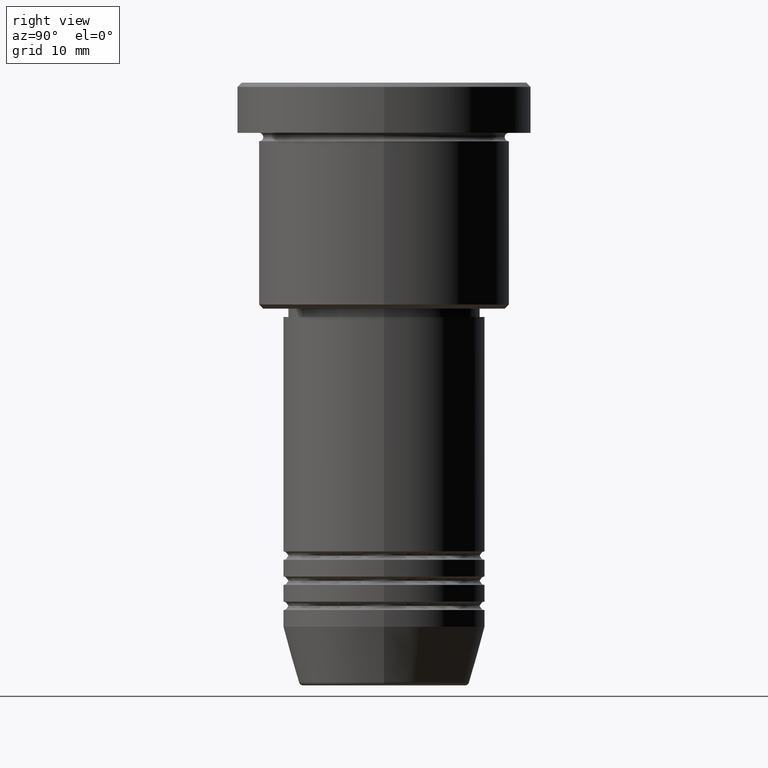
[diagram: clean part render]
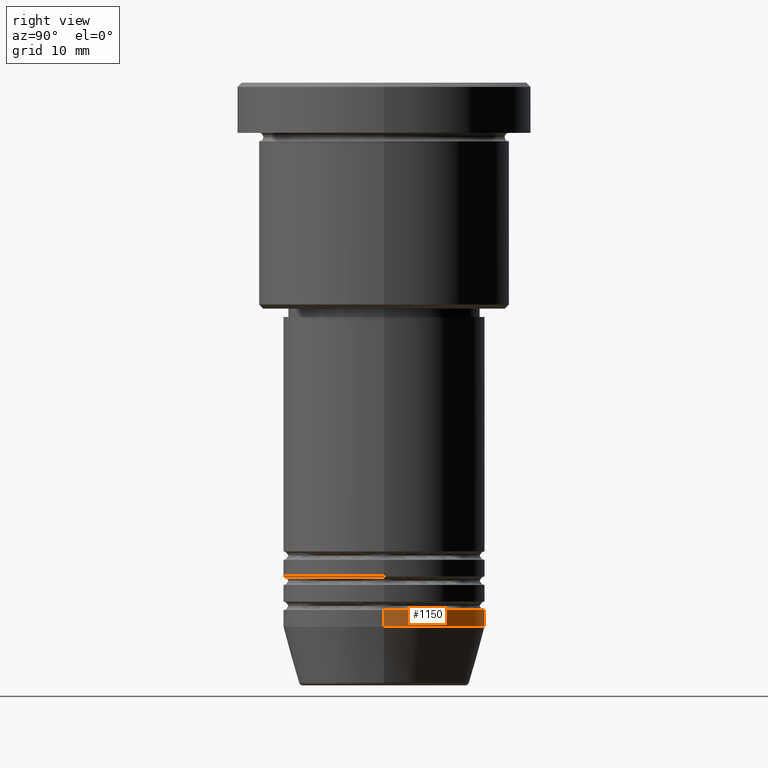
[diagram: same view with one face highlighted and labeled with its STEP entity id]
A machine part, right view. The second image highlights one B-rep face of the part: STEP entity #1150.
In plain terms, the highlighted cylindrical surface (partial cylindrical patch) has radius 12 mm, axis along (-0, -0, 1).
Its self-contained STEP definition (entity closure, byte-faithful):
#34 = DIRECTION ( 'NONE',  ( -0.000000000000000000, -0.000000000000000000, 1.000000000000000000 ) ) ;
#48 = CARTESIAN_POINT ( 'NONE',  ( 12.00000000000000000, 0.000000000000000000, -63.00000000000000000 ) ) ;
#82 = DIRECTION ( 'NONE',  ( -0.000000000000000000, -0.000000000000000000, 1.000000000000000000 ) ) ;
#101 = VERTEX_POINT ( 'NONE', #611 ) ;
#106 = CIRCLE ( 'NONE', #548, 12.00000000000000000 ) ;
#107 = VERTEX_POINT ( 'NONE', #237 ) ;
#113 = CARTESIAN_POINT ( 'NONE',  ( 0.000000000000000000, 0.000000000000000000, 0.000000000000000000 ) ) ;
#213 = ORIENTED_EDGE ( 'NONE', *, *, #599, .T. ) ;
#216 = CARTESIAN_POINT ( 'NONE',  ( -12.00000000000000000, 1.469576158976823947E-15, -65.00000000000000000 ) ) ;
#218 = DIRECTION ( 'NONE',  ( -0.000000000000000000, -0.000000000000000000, 1.000000000000000000 ) ) ;
#237 = CARTESIAN_POINT ( 'NONE',  ( 12.00000000000000000, 0.000000000000000000, -65.00000000000000000 ) ) ;
#255 = CARTESIAN_POINT ( 'NONE',  ( 12.00000000000000000, 0.000000000000000000, 0.000000000000000000 ) ) ;
#263 = LINE ( 'NONE', #986, #565 ) ;
#297 = VERTEX_POINT ( 'NONE', #216 ) ;
#341 = CARTESIAN_POINT ( 'NONE',  ( 0.000000000000000000, 0.000000000000000000, -65.00000000000000000 ) ) ;
#355 = VECTOR ( 'NONE', #970, 1000.000000000000000 ) ;
#429 = EDGE_CURVE ( 'NONE', #107, #517, #610, .T. ) ;
#455 = ORIENTED_EDGE ( 'NONE', *, *, #429, .F. ) ;
#481 = CARTESIAN_POINT ( 'NONE',  ( 0.000000000000000000, 0.000000000000000000, -63.00000000000000000 ) ) ;
#517 = VERTEX_POINT ( 'NONE', #48 ) ;
#535 = ORIENTED_EDGE ( 'NONE', *, *, #1140, .T. ) ;
#548 = AXIS2_PLACEMENT_3D ( 'NONE', #341, #698, #613 ) ;
#565 = VECTOR ( 'NONE', #82, 1000.000000000000000 ) ;
#572 = DIRECTION ( 'NONE',  ( 1.000000000000000000, 0.000000000000000000, 0.000000000000000000 ) ) ;
#599 = EDGE_CURVE ( 'NONE', #297, #101, #263, .T. ) ;
#610 = LINE ( 'NONE', #255, #355 ) ;
#611 = CARTESIAN_POINT ( 'NONE',  ( -12.00000000000000000, 1.469576158976823947E-15, -63.00000000000000000 ) ) ;
#613 = DIRECTION ( 'NONE',  ( 1.000000000000000000, 0.000000000000000000, 0.000000000000000000 ) ) ;
#650 = CYLINDRICAL_SURFACE ( 'NONE', #786, 12.00000000000000000 ) ;
#698 = DIRECTION ( 'NONE',  ( -0.000000000000000000, -0.000000000000000000, 1.000000000000000000 ) ) ;
#769 = ORIENTED_EDGE ( 'NONE', *, *, #1160, .F. ) ;
#770 = AXIS2_PLACEMENT_3D ( 'NONE', #481, #218, #572 ) ;
#786 = AXIS2_PLACEMENT_3D ( 'NONE', #113, #34, #946 ) ;
#946 = DIRECTION ( 'NONE',  ( 1.000000000000000000, 0.000000000000000000, 0.000000000000000000 ) ) ;
#970 = DIRECTION ( 'NONE',  ( -0.000000000000000000, -0.000000000000000000, 1.000000000000000000 ) ) ;
#979 = EDGE_LOOP ( 'NONE', ( #535, #213, #769, #455 ) ) ;
#986 = CARTESIAN_POINT ( 'NONE',  ( -12.00000000000000000, 1.469576158976823947E-15, 0.000000000000000000 ) ) ;
#1046 = CIRCLE ( 'NONE', #770, 12.00000000000000000 ) ;
#1140 = EDGE_CURVE ( 'NONE', #107, #297, #106, .T. ) ;
#1150 = ADVANCED_FACE ( 'NONE', ( #1161 ), #650, .T. ) ;
#1160 = EDGE_CURVE ( 'NONE', #517, #101, #1046, .T. ) ;
#1161 = FACE_OUTER_BOUND ( 'NONE', #979, .T. ) ;